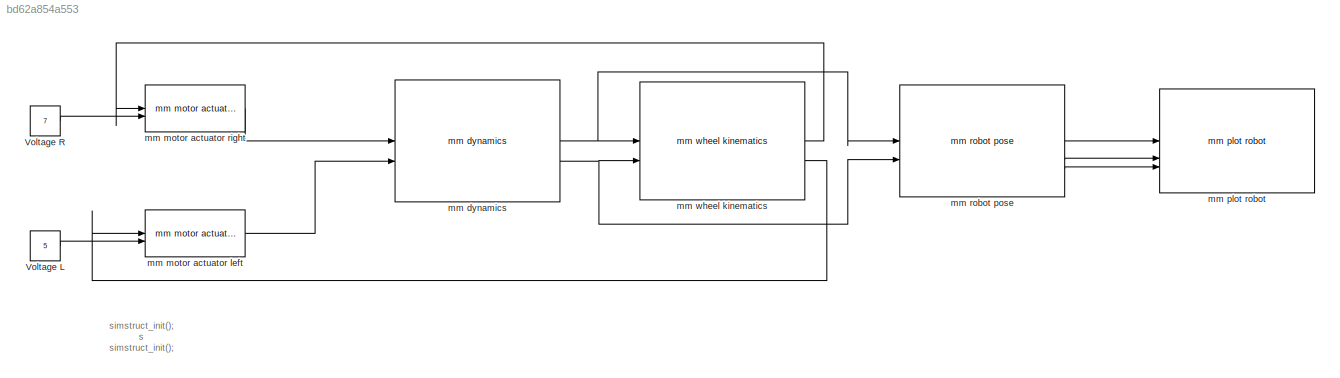
MODEL slx_bd62a854a553
KIND model
CONFIG AbsTol = auto
CONFIG EnableMultiTasking = off
CONFIG FixedStep = 0.01
CONFIG InitFcn = simstruct_init();
CONFIG MaxStep = auto
CONFIG MinStep = auto
CONFIG RelTol = 1e-3
CONFIG SampleTimeConstraint = Unconstrained
CONFIG SolverName = VariableStepAuto
CONFIG StartTime = 0.0
CONFIG StopTime = 25
BLOCK [Constant] Voltage L
  Value = 5
BLOCK [Constant] Voltage R
  Value = 7
BLOCK [Reference] mm dynamics  REF=dhaouadi2013_lib/mm dynamics  (lib defined in slx_0665a0507d13)
  SourceBlock = dhaouadi2013_lib/mm dynamics
  SourceProductName = UCT dhaouadi2013
BLOCK [Reference] mm motor actuator left  REF=dhaouadi2013_lib/mm motor actuator  (lib defined in slx_0665a0507d13)
  SourceBlock = dhaouadi2013_lib/mm motor actuator
BLOCK [Reference] mm motor actuator right  REF=dhaouadi2013_lib/mm motor actuator  (lib defined in slx_0665a0507d13)
  SourceBlock = dhaouadi2013_lib/mm motor actuator
BLOCK [Reference] mm plot robot  REF=mmuct_lib/mm plot robot  (lib defined in slx_2620ace7ce61, slx_448e9b5fb939)
  SourceBlock = mmuct_lib/mm plot robot
  SourceProductName = UCT EEE Micromouse
  SourceType = MM Plot Robot
BLOCK [Reference] mm robot pose  REF=dhaouadi2013_lib/mm robot pose  (lib defined in slx_0665a0507d13)
  SourceBlock = dhaouadi2013_lib/mm robot pose
BLOCK [Reference] mm wheel kinematics  REF=dhaouadi2013_lib/mm wheel kinematics  (lib defined in slx_0665a0507d13)
  SourceBlock = dhaouadi2013_lib/mm wheel kinematics
ANNOTATION (root): simstruct_init(); s simstruct_init();
LINE Voltage L:1 -> mm motor actuator left:2
LINE Voltage R:1 -> mm motor actuator right:2
NET mm dynamics:1 -> mm robot pose:1, mm wheel kinematics:1
NET mm dynamics:2 -> mm robot pose:2, mm wheel kinematics:2
LINE mm motor actuator left:1 -> mm dynamics:2
LINE mm motor actuator right:1 -> mm dynamics:1
LINE mm robot pose:1 -> mm plot robot:1
LINE mm robot pose:2 -> mm plot robot:2
LINE mm robot pose:3 -> mm plot robot:3
LINE mm wheel kinematics:1 -> mm motor actuator right:1
LINE mm wheel kinematics:2 -> mm motor actuator left:1
note: NET lines group one-source signal fan-out (src -> all destinations, sorted); 1:1 wires keep LINE
